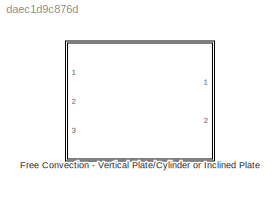
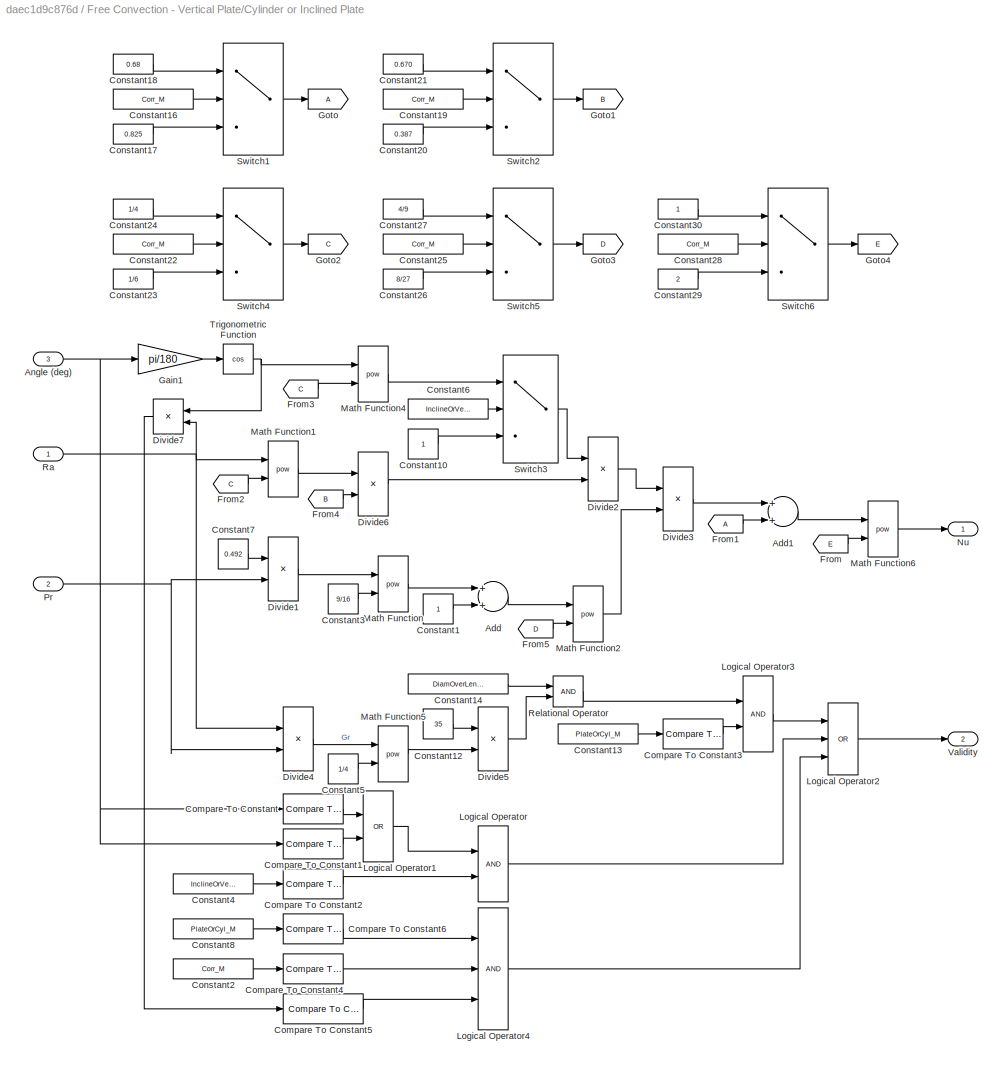
MODEL slx_daec1d9c876d
KIND library
CONFIG AbsTol = auto
CONFIG FixedStep = auto
CONFIG MaxStep = auto
CONFIG MinStep = auto
CONFIG RelTol = 1e-3
CONFIG SampleTimeConstraint = Unconstrained
CONFIG Solver = ode45
CONFIG SolverMode = Auto
CONFIG SolverName = ode45
CONFIG StartTime = 0.0
CONFIG StopTime = 10.0
BLOCK [SubSystem] Free Convection - Vertical Plate//Cylinder or Inclined Plate
  Ports = [3, 2]
  RequestExecContextInheritance = off
BLOCK [Sum] Free Convection - Vertical Plate//Cylinder or Inclined Plate/Add
  InputSameDT = off
  OutDataTypeStr = Inherit: Inherit via internal rule
  Ports = [2, 1]
  SaturateOnIntegerOverflow = off
BLOCK [Sum] Free Convection - Vertical Plate//Cylinder or Inclined Plate/Add1
  InputSameDT = off
  OutDataTypeStr = Inherit: Inherit via internal rule
  Ports = [2, 1]
  SaturateOnIntegerOverflow = off
BLOCK [Inport] Free Convection - Vertical Plate//Cylinder or Inclined Plate/Angle (deg)
  IconDisplay = Port number
  Port = 3
BLOCK [Reference] Free Convection - Vertical Plate//Cylinder or Inclined Plate/Compare To Constant  REF=simulink/Logic and Bit
Operations/Compare
To Constant
  OutDataTypeStr = boolean
  Ports = [1, 1]
  SourceBlock = simulink/Logic and Bit\nOperations/Compare\nTo Constant
  SourceType = Compare To Constant
  ZeroCross = on
  const = 0
  relop = <
BLOCK [Reference] Free Convection - Vertical Plate//Cylinder or Inclined Plate/Compare To Constant1  REF=simulink/Logic and Bit
Operations/Compare
To Constant
  OutDataTypeStr = boolean
  Ports = [1, 1]
  SourceBlock = simulink/Logic and Bit\nOperations/Compare\nTo Constant
  SourceType = Compare To Constant
  ZeroCross = on
  const = 60
  relop = >
BLOCK [Reference] Free Convection - Vertical Plate//Cylinder or Inclined Plate/Compare To Constant2  REF=simulink/Logic and Bit
Operations/Compare
To Constant
  OutDataTypeStr = boolean
  Ports = [1, 1]
  SourceBlock = simulink/Logic and Bit\nOperations/Compare\nTo Constant
  SourceType = Compare To Constant
  ZeroCross = on
  const = 2
  relop = ==
BLOCK [Reference] Free Convection - Vertical Plate//Cylinder or Inclined Plate/Compare To Constant3  REF=simulink/Logic and Bit
Operations/Compare
To Constant
  OutDataTypeStr = boolean
  Ports = [1, 1]
  SourceBlock = simulink/Logic and Bit\nOperations/Compare\nTo Constant
  SourceType = Compare To Constant
  ZeroCross = on
  const = 2
  relop = ==
BLOCK [Reference] Free Convection - Vertical Plate//Cylinder or Inclined Plate/Compare To Constant4  REF=simulink/Logic and Bit
Operations/Compare
To Constant
  OutDataTypeStr = boolean
  Ports = [1, 1]
  SourceBlock = simulink/Logic and Bit\nOperations/Compare\nTo Constant
  SourceType = Compare To Constant
  ZeroCross = on
  const = 2
  relop = ==
BLOCK [Reference] Free Convection - Vertical Plate//Cylinder or Inclined Plate/Compare To Constant5  REF=simulink/Logic and Bit
Operations/Compare
To Constant
  OutDataTypeStr = boolean
  Ports = [1, 1]
  SourceBlock = simulink/Logic and Bit\nOperations/Compare\nTo Constant
  SourceType = Compare To Constant
  ZeroCross = on
  const = 10^9
  relop = >
BLOCK [Reference] Free Convection - Vertical Plate//Cylinder or Inclined Plate/Compare To Constant6  REF=simulink/Logic and Bit
Operations/Compare
To Constant
  OutDataTypeStr = boolean
  Ports = [1, 1]
  SourceBlock = simulink/Logic and Bit\nOperations/Compare\nTo Constant
  SourceType = Compare To Constant
  ZeroCross = on
  const = 1
  relop = ==
BLOCK [Constant] Free Convection - Vertical Plate//Cylinder or Inclined Plate/Constant1
BLOCK [Constant] Free Convection - Vertical Plate//Cylinder or Inclined Plate/Constant10
BLOCK [Constant] Free Convection - Vertical Plate//Cylinder or Inclined Plate/Constant12
  Value = 35
BLOCK [Constant] Free Convection - Vertical Plate//Cylinder or Inclined Plate/Constant13
  Value = PlateOrCyl_M
BLOCK [Constant] Free Convection - Vertical Plate//Cylinder or Inclined Plate/Constant14
  Value = DiamOverLen_M
BLOCK [Constant] Free Convection - Vertical Plate//Cylinder or Inclined Plate/Constant16
  Value = Corr_M
BLOCK [Constant] Free Convection - Vertical Plate//Cylinder or Inclined Plate/Constant17
  Value = 0.825
BLOCK [Constant] Free Convection - Vertical Plate//Cylinder or Inclined Plate/Constant18
  Value = 0.68
BLOCK [Constant] Free Convection - Vertical Plate//Cylinder or Inclined Plate/Constant19
  Value = Corr_M
BLOCK [Constant] Free Convection - Vertical Plate//Cylinder or Inclined Plate/Constant2
  Value = Corr_M
BLOCK [Constant] Free Convection - Vertical Plate//Cylinder or Inclined Plate/Constant20
  Value = 0.387
BLOCK [Constant] Free Convection - Vertical Plate//Cylinder or Inclined Plate/Constant21
  Value = 0.670
BLOCK [Constant] Free Convection - Vertical Plate//Cylinder or Inclined Plate/Constant22
  Value = Corr_M
BLOCK [Constant] Free Convection - Vertical Plate//Cylinder or Inclined Plate/Constant23
  Value = 1/6
BLOCK [Constant] Free Convection - Vertical Plate//Cylinder or Inclined Plate/Constant24
  Value = 1/4
BLOCK [Constant] Free Convection - Vertical Plate//Cylinder or Inclined Plate/Constant25
  Value = Corr_M
BLOCK [Constant] Free Convection - Vertical Plate//Cylinder or Inclined Plate/Constant26
  Value = 8/27
BLOCK [Constant] Free Convection - Vertical Plate//Cylinder or Inclined Plate/Constant27
  Value = 4/9
BLOCK [Constant] Free Convection - Vertical Plate//Cylinder or Inclined Plate/Constant28
  Value = Corr_M
BLOCK [Constant] Free Convection - Vertical Plate//Cylinder or Inclined Plate/Constant29
  Value = 2
BLOCK [Constant] Free Convection - Vertical Plate//Cylinder or Inclined Plate/Constant3
  Value = 9/16
BLOCK [Constant] Free Convection - Vertical Plate//Cylinder or Inclined Plate/Constant30
BLOCK [Constant] Free Convection - Vertical Plate//Cylinder or Inclined Plate/Constant4
  Value = InclineOrVert_M
BLOCK [Constant] Free Convection - Vertical Plate//Cylinder or Inclined Plate/Constant5
  Value = 1/4
BLOCK [Constant] Free Convection - Vertical Plate//Cylinder or Inclined Plate/Constant6
  Value = InclineOrVert_M
BLOCK [Constant] Free Convection - Vertical Plate//Cylinder or Inclined Plate/Constant7
  Value = 0.492
BLOCK [Constant] Free Convection - Vertical Plate//Cylinder or Inclined Plate/Constant8
  Value = PlateOrCyl_M
BLOCK [Product] Free Convection - Vertical Plate//Cylinder or Inclined Plate/Divide1
  InputSameDT = off
  Inputs = */
  OutDataTypeStr = Inherit: Inherit via internal rule
  Ports = [2, 1]
  RndMeth = Floor
  SaturateOnIntegerOverflow = off
BLOCK [Product] Free Convection - Vertical Plate//Cylinder or Inclined Plate/Divide2
  InputSameDT = off
  Inputs = **
  OutDataTypeStr = Inherit: Inherit via internal rule
  Ports = [2, 1]
  RndMeth = Floor
  SaturateOnIntegerOverflow = off
BLOCK [Product] Free Convection - Vertical Plate//Cylinder or Inclined Plate/Divide3
  InputSameDT = off
  Inputs = **
  OutDataTypeStr = Inherit: Inherit via internal rule
  Ports = [2, 1]
  RndMeth = Floor
  SaturateOnIntegerOverflow = off
BLOCK [Product] Free Convection - Vertical Plate//Cylinder or Inclined Plate/Divide4
  InputSameDT = off
  Inputs = */
  OutDataTypeStr = Inherit: Inherit via internal rule
  Ports = [2, 1]
  RndMeth = Floor
  SaturateOnIntegerOverflow = off
BLOCK [Product] Free Convection - Vertical Plate//Cylinder or Inclined Plate/Divide5
  InputSameDT = off
  Inputs = */
  OutDataTypeStr = Inherit: Inherit via internal rule
  Ports = [2, 1]
  RndMeth = Floor
  SaturateOnIntegerOverflow = off
BLOCK [Product] Free Convection - Vertical Plate//Cylinder or Inclined Plate/Divide6
  InputSameDT = off
  Inputs = **
  OutDataTypeStr = Inherit: Inherit via internal rule
  Ports = [2, 1]
  RndMeth = Floor
  SaturateOnIntegerOverflow = off
BLOCK [Product] Free Convection - Vertical Plate//Cylinder or Inclined Plate/Divide7
  InputSameDT = off
  Inputs = **
  OutDataTypeStr = Inherit: Inherit via internal rule
  Ports = [2, 1]
  RndMeth = Floor
  SaturateOnIntegerOverflow = off
BLOCK [From] Free Convection - Vertical Plate//Cylinder or Inclined Plate/From
  GotoTag = E
BLOCK [From] Free Convection - Vertical Plate//Cylinder or Inclined Plate/From1
BLOCK [From] Free Convection - Vertical Plate//Cylinder or Inclined Plate/From2
  GotoTag = C
BLOCK [From] Free Convection - Vertical Plate//Cylinder or Inclined Plate/From3
  GotoTag = C
BLOCK [From] Free Convection - Vertical Plate//Cylinder or Inclined Plate/From4
  GotoTag = B
BLOCK [From] Free Convection - Vertical Plate//Cylinder or Inclined Plate/From5
  GotoTag = D
BLOCK [Gain] Free Convection - Vertical Plate//Cylinder or Inclined Plate/Gain1
  Gain = pi/180
  OutDataTypeStr = Inherit: Inherit via internal rule
  ParamDataTypeStr = Inherit: Inherit via internal rule
  SaturateOnIntegerOverflow = off
BLOCK [Goto] Free Convection - Vertical Plate//Cylinder or Inclined Plate/Goto
BLOCK [Goto] Free Convection - Vertical Plate//Cylinder or Inclined Plate/Goto1
  GotoTag = B
BLOCK [Goto] Free Convection - Vertical Plate//Cylinder or Inclined Plate/Goto2
  GotoTag = C
BLOCK [Goto] Free Convection - Vertical Plate//Cylinder or Inclined Plate/Goto3
  GotoTag = D
BLOCK [Goto] Free Convection - Vertical Plate//Cylinder or Inclined Plate/Goto4
  GotoTag = E
BLOCK [Logic] Free Convection - Vertical Plate//Cylinder or Inclined Plate/Logical Operator
  AllPortsSameDT = off
  OutDataTypeStr = boolean
  Ports = [2, 1]
BLOCK [Logic] Free Convection - Vertical Plate//Cylinder or Inclined Plate/Logical Operator1
  AllPortsSameDT = off
  Operator = OR
  OutDataTypeStr = boolean
  Ports = [2, 1]
BLOCK [Logic] Free Convection - Vertical Plate//Cylinder or Inclined Plate/Logical Operator2
  AllPortsSameDT = off
  Inputs = 3
  Operator = OR
  OutDataTypeStr = boolean
  Ports = [3, 1]
BLOCK [Logic] Free Convection - Vertical Plate//Cylinder or Inclined Plate/Logical Operator3
  AllPortsSameDT = off
  OutDataTypeStr = boolean
  Ports = [2, 1]
BLOCK [Logic] Free Convection - Vertical Plate//Cylinder or Inclined Plate/Logical Operator4
  AllPortsSameDT = off
  Inputs = 3
  OutDataTypeStr = boolean
  Ports = [3, 1]
BLOCK [Math] Free Convection - Vertical Plate//Cylinder or Inclined Plate/Math Function
  Operator = pow
  Ports = [2, 1]
BLOCK [Math] Free Convection - Vertical Plate//Cylinder or Inclined Plate/Math Function1
  Operator = pow
  Ports = [2, 1]
BLOCK [Math] Free Convection - Vertical Plate//Cylinder or Inclined Plate/Math Function2
  Operator = pow
  Ports = [2, 1]
BLOCK [Math] Free Convection - Vertical Plate//Cylinder or Inclined Plate/Math Function4
  Operator = pow
  Ports = [2, 1]
BLOCK [Math] Free Convection - Vertical Plate//Cylinder or Inclined Plate/Math Function5
  Operator = pow
  Ports = [2, 1]
BLOCK [Math] Free Convection - Vertical Plate//Cylinder or Inclined Plate/Math Function6
  Operator = pow
  Ports = [2, 1]
BLOCK [Outport] Free Convection - Vertical Plate//Cylinder or Inclined Plate/Nu
  IconDisplay = Port number
BLOCK [Inport] Free Convection - Vertical Plate//Cylinder or Inclined Plate/Pr
  IconDisplay = Port number
  Port = 2
BLOCK [Inport] Free Convection - Vertical Plate//Cylinder or Inclined Plate/Ra
  IconDisplay = Port number
BLOCK [RelationalOperator] Free Convection - Vertical Plate//Cylinder or Inclined Plate/Relational Operator
  InputSameDT = off
  OutDataTypeStr = boolean
  Ports = [2, 1]
BLOCK [Switch] Free Convection - Vertical Plate//Cylinder or Inclined Plate/Switch1
  Criteria = u2 > Threshold
  InputSameDT = off
  SaturateOnIntegerOverflow = off
  Threshold = 1.5
BLOCK [Switch] Free Convection - Vertical Plate//Cylinder or Inclined Plate/Switch2
  Criteria = u2 > Threshold
  InputSameDT = off
  SaturateOnIntegerOverflow = off
  Threshold = 1.5
BLOCK [Switch] Free Convection - Vertical Plate//Cylinder or Inclined Plate/Switch3
  Criteria = u2 > Threshold
  InputSameDT = off
  SaturateOnIntegerOverflow = off
  Threshold = 1.5
BLOCK [Switch] Free Convection - Vertical Plate//Cylinder or Inclined Plate/Switch4
  Criteria = u2 > Threshold
  InputSameDT = off
  SaturateOnIntegerOverflow = off
  Threshold = 1.5
BLOCK [Switch] Free Convection - Vertical Plate//Cylinder or Inclined Plate/Switch5
  Criteria = u2 > Threshold
  InputSameDT = off
  SaturateOnIntegerOverflow = off
  Threshold = 1.5
BLOCK [Switch] Free Convection - Vertical Plate//Cylinder or Inclined Plate/Switch6
  Criteria = u2 > Threshold
  InputSameDT = off
  SaturateOnIntegerOverflow = off
  Threshold = 1.5
BLOCK [Trigonometry] Free Convection - Vertical Plate//Cylinder or Inclined Plate/Trigonometric Function
  Operator = cos
  Ports = [1, 1]
BLOCK [Outport] Free Convection - Vertical Plate//Cylinder or Inclined Plate/Validity
  IconDisplay = Port number
  Port = 2
LINE Free Convection - Vertical Plate//Cylinder or Inclined Plate/Add1:1 -> Free Convection - Vertical Plate//Cylinder or Inclined Plate/Math Function6:1
LINE Free Convection - Vertical Plate//Cylinder or Inclined Plate/Add:1 -> Free Convection - Vertical Plate//Cylinder or Inclined Plate/Math Function2:1
NET Free Convection - Vertical Plate//Cylinder or Inclined Plate/Angle (deg):1 -> Free Convection - Vertical Plate//Cylinder or Inclined Plate/Compare To Constant1:1, Free Convection - Vertical Plate//Cylinder or Inclined Plate/Compare To Constant:1, Free Convection - Vertical Plate//Cylinder or Inclined Plate/Gain1:1
LINE Free Convection - Vertical Plate//Cylinder or Inclined Plate/Compare To Constant1:1 -> Free Convection - Vertical Plate//Cylinder or Inclined Plate/Logical Operator1:2
LINE Free Convection - Vertical Plate//Cylinder or Inclined Plate/Compare To Constant2:1 -> Free Convection - Vertical Plate//Cylinder or Inclined Plate/Logical Operator:2
LINE Free Convection - Vertical Plate//Cylinder or Inclined Plate/Compare To Constant3:1 -> Free Convection - Vertical Plate//Cylinder or Inclined Plate/Logical Operator3:2
LINE Free Convection - Vertical Plate//Cylinder or Inclined Plate/Compare To Constant4:1 -> Free Convection - Vertical Plate//Cylinder or Inclined Plate/Logical Operator4:2
LINE Free Convection - Vertical Plate//Cylinder or Inclined Plate/Compare To Constant5:1 -> Free Convection - Vertical Plate//Cylinder or Inclined Plate/Logical Operator4:3
LINE Free Convection - Vertical Plate//Cylinder or Inclined Plate/Compare To Constant6:1 -> Free Convection - Vertical Plate//Cylinder or Inclined Plate/Logical Operator4:1
LINE Free Convection - Vertical Plate//Cylinder or Inclined Plate/Compare To Constant:1 -> Free Convection - Vertical Plate//Cylinder or Inclined Plate/Logical Operator1:1
LINE Free Convection - Vertical Plate//Cylinder or Inclined Plate/Constant10:1 -> Free Convection - Vertical Plate//Cylinder or Inclined Plate/Switch3:3
LINE Free Convection - Vertical Plate//Cylinder or Inclined Plate/Constant12:1 -> Free Convection - Vertical Plate//Cylinder or Inclined Plate/Divide5:1
LINE Free Convection - Vertical Plate//Cylinder or Inclined Plate/Constant13:1 -> Free Convection - Vertical Plate//Cylinder or Inclined Plate/Compare To Constant3:1
LINE Free Convection - Vertical Plate//Cylinder or Inclined Plate/Constant14:1 -> Free Convection - Vertical Plate//Cylinder or Inclined Plate/Relational Operator:1
LINE Free Convection - Vertical Plate//Cylinder or Inclined Plate/Constant16:1 -> Free Convection - Vertical Plate//Cylinder or Inclined Plate/Switch1:2
LINE Free Convection - Vertical Plate//Cylinder or Inclined Plate/Constant17:1 -> Free Convection - Vertical Plate//Cylinder or Inclined Plate/Switch1:3
LINE Free Convection - Vertical Plate//Cylinder or Inclined Plate/Constant18:1 -> Free Convection - Vertical Plate//Cylinder or Inclined Plate/Switch1:1
LINE Free Convection - Vertical Plate//Cylinder or Inclined Plate/Constant19:1 -> Free Convection - Vertical Plate//Cylinder or Inclined Plate/Switch2:2
LINE Free Convection - Vertical Plate//Cylinder or Inclined Plate/Constant1:1 -> Free Convection - Vertical Plate//Cylinder or Inclined Plate/Add:2
LINE Free Convection - Vertical Plate//Cylinder or Inclined Plate/Constant20:1 -> Free Convection - Vertical Plate//Cylinder or Inclined Plate/Switch2:3
LINE Free Convection - Vertical Plate//Cylinder or Inclined Plate/Constant21:1 -> Free Convection - Vertical Plate//Cylinder or Inclined Plate/Switch2:1
LINE Free Convection - Vertical Plate//Cylinder or Inclined Plate/Constant22:1 -> Free Convection - Vertical Plate//Cylinder or Inclined Plate/Switch4:2
LINE Free Convection - Vertical Plate//Cylinder or Inclined Plate/Constant23:1 -> Free Convection - Vertical Plate//Cylinder or Inclined Plate/Switch4:3
LINE Free Convection - Vertical Plate//Cylinder or Inclined Plate/Constant24:1 -> Free Convection - Vertical Plate//Cylinder or Inclined Plate/Switch4:1
LINE Free Convection - Vertical Plate//Cylinder or Inclined Plate/Constant25:1 -> Free Convection - Vertical Plate//Cylinder or Inclined Plate/Switch5:2
LINE Free Convection - Vertical Plate//Cylinder or Inclined Plate/Constant26:1 -> Free Convection - Vertical Plate//Cylinder or Inclined Plate/Switch5:3
LINE Free Convection - Vertical Plate//Cylinder or Inclined Plate/Constant27:1 -> Free Convection - Vertical Plate//Cylinder or Inclined Plate/Switch5:1
LINE Free Convection - Vertical Plate//Cylinder or Inclined Plate/Constant28:1 -> Free Convection - Vertical Plate//Cylinder or Inclined Plate/Switch6:2
LINE Free Convection - Vertical Plate//Cylinder or Inclined Plate/Constant29:1 -> Free Convection - Vertical Plate//Cylinder or Inclined Plate/Switch6:3
LINE Free Convection - Vertical Plate//Cylinder or Inclined Plate/Constant2:1 -> Free Convection - Vertical Plate//Cylinder or Inclined Plate/Compare To Constant4:1
LINE Free Convection - Vertical Plate//Cylinder or Inclined Plate/Constant30:1 -> Free Convection - Vertical Plate//Cylinder or Inclined Plate/Switch6:1
LINE Free Convection - Vertical Plate//Cylinder or Inclined Plate/Constant3:1 -> Free Convection - Vertical Plate//Cylinder or Inclined Plate/Math Function:2
LINE Free Convection - Vertical Plate//Cylinder or Inclined Plate/Constant4:1 -> Free Convection - Vertical Plate//Cylinder or Inclined Plate/Compare To Constant2:1
LINE Free Convection - Vertical Plate//Cylinder or Inclined Plate/Constant5:1 -> Free Convection - Vertical Plate//Cylinder or Inclined Plate/Math Function5:2
LINE Free Convection - Vertical Plate//Cylinder or Inclined Plate/Constant6:1 -> Free Convection - Vertical Plate//Cylinder or Inclined Plate/Switch3:2
LINE Free Convection - Vertical Plate//Cylinder or Inclined Plate/Constant7:1 -> Free Convection - Vertical Plate//Cylinder or Inclined Plate/Divide1:1
LINE Free Convection - Vertical Plate//Cylinder or Inclined Plate/Constant8:1 -> Free Convection - Vertical Plate//Cylinder or Inclined Plate/Compare To Constant6:1
LINE Free Convection - Vertical Plate//Cylinder or Inclined Plate/Divide1:1 -> Free Convection - Vertical Plate//Cylinder or Inclined Plate/Math Function:1
LINE Free Convection - Vertical Plate//Cylinder or Inclined Plate/Divide2:1 -> Free Convection - Vertical Plate//Cylinder or Inclined Plate/Divide3:1
LINE Free Convection - Vertical Plate//Cylinder or Inclined Plate/Divide3:1 -> Free Convection - Vertical Plate//Cylinder or Inclined Plate/Add1:1
LINE Free Convection - Vertical Plate//Cylinder or Inclined Plate/Divide4:1 -> Free Convection - Vertical Plate//Cylinder or Inclined Plate/Math Function5:1
LINE Free Convection - Vertical Plate//Cylinder or Inclined Plate/Divide5:1 -> Free Convection - Vertical Plate//Cylinder or Inclined Plate/Relational Operator:2
LINE Free Convection - Vertical Plate//Cylinder or Inclined Plate/Divide6:1 -> Free Convection - Vertical Plate//Cylinder or Inclined Plate/Divide2:2
LINE Free Convection - Vertical Plate//Cylinder or Inclined Plate/Divide7:1 -> Free Convection - Vertical Plate//Cylinder or Inclined Plate/Compare To Constant5:1
LINE Free Convection - Vertical Plate//Cylinder or Inclined Plate/From1:1 -> Free Convection - Vertical Plate//Cylinder or Inclined Plate/Add1:2
LINE Free Convection - Vertical Plate//Cylinder or Inclined Plate/From2:1 -> Free Convection - Vertical Plate//Cylinder or Inclined Plate/Math Function1:2
LINE Free Convection - Vertical Plate//Cylinder or Inclined Plate/From3:1 -> Free Convection - Vertical Plate//Cylinder or Inclined Plate/Math Function4:2
LINE Free Convection - Vertical Plate//Cylinder or Inclined Plate/From4:1 -> Free Convection - Vertical Plate//Cylinder or Inclined Plate/Divide6:2
LINE Free Convection - Vertical Plate//Cylinder or Inclined Plate/From5:1 -> Free Convection - Vertical Plate//Cylinder or Inclined Plate/Math Function2:2
LINE Free Convection - Vertical Plate//Cylinder or Inclined Plate/From:1 -> Free Convection - Vertical Plate//Cylinder or Inclined Plate/Math Function6:2
LINE Free Convection - Vertical Plate//Cylinder or Inclined Plate/Gain1:1 -> Free Convection - Vertical Plate//Cylinder or Inclined Plate/Trigonometric Function:1
LINE Free Convection - Vertical Plate//Cylinder or Inclined Plate/Logical Operator1:1 -> Free Convection - Vertical Plate//Cylinder or Inclined Plate/Logical Operator:1
LINE Free Convection - Vertical Plate//Cylinder or Inclined Plate/Logical Operator2:1 -> Free Convection - Vertical Plate//Cylinder or Inclined Plate/Validity:1
LINE Free Convection - Vertical Plate//Cylinder or Inclined Plate/Logical Operator3:1 -> Free Convection - Vertical Plate//Cylinder or Inclined Plate/Logical Operator2:1
LINE Free Convection - Vertical Plate//Cylinder or Inclined Plate/Logical Operator4:1 -> Free Convection - Vertical Plate//Cylinder or Inclined Plate/Logical Operator2:3
LINE Free Convection - Vertical Plate//Cylinder or Inclined Plate/Logical Operator:1 -> Free Convection - Vertical Plate//Cylinder or Inclined Plate/Logical Operator2:2
LINE Free Convection - Vertical Plate//Cylinder or Inclined Plate/Math Function1:1 -> Free Convection - Vertical Plate//Cylinder or Inclined Plate/Divide6:1
LINE Free Convection - Vertical Plate//Cylinder or Inclined Plate/Math Function2:1 -> Free Convection - Vertical Plate//Cylinder or Inclined Plate/Divide3:2
LINE Free Convection - Vertical Plate//Cylinder or Inclined Plate/Math Function4:1 -> Free Convection - Vertical Plate//Cylinder or Inclined Plate/Switch3:1
LINE Free Convection - Vertical Plate//Cylinder or Inclined Plate/Math Function5:1 -> Free Convection - Vertical Plate//Cylinder or Inclined Plate/Divide5:2
LINE Free Convection - Vertical Plate//Cylinder or Inclined Plate/Math Function6:1 -> Free Convection - Vertical Plate//Cylinder or Inclined Plate/Nu:1
LINE Free Convection - Vertical Plate//Cylinder or Inclined Plate/Math Function:1 -> Free Convection - Vertical Plate//Cylinder or Inclined Plate/Add:1
NET Free Convection - Vertical Plate//Cylinder or Inclined Plate/Pr:1 -> Free Convection - Vertical Plate//Cylinder or Inclined Plate/Divide1:2, Free Convection - Vertical Plate//Cylinder or Inclined Plate/Divide4:2
NET Free Convection - Vertical Plate//Cylinder or Inclined Plate/Ra:1 -> Free Convection - Vertical Plate//Cylinder or Inclined Plate/Divide4:1, Free Convection - Vertical Plate//Cylinder or Inclined Plate/Divide7:2, Free Convection - Vertical Plate//Cylinder or Inclined Plate/Math Function1:1
LINE Free Convection - Vertical Plate//Cylinder or Inclined Plate/Relational Operator:1 -> Free Convection - Vertical Plate//Cylinder or Inclined Plate/Logical Operator3:1
LINE Free Convection - Vertical Plate//Cylinder or Inclined Plate/Switch1:1 -> Free Convection - Vertical Plate//Cylinder or Inclined Plate/Goto:1
LINE Free Convection - Vertical Plate//Cylinder or Inclined Plate/Switch2:1 -> Free Convection - Vertical Plate//Cylinder or Inclined Plate/Goto1:1
LINE Free Convection - Vertical Plate//Cylinder or Inclined Plate/Switch3:1 -> Free Convection - Vertical Plate//Cylinder or Inclined Plate/Divide2:1
LINE Free Convection - Vertical Plate//Cylinder or Inclined Plate/Switch4:1 -> Free Convection - Vertical Plate//Cylinder or Inclined Plate/Goto2:1
LINE Free Convection - Vertical Plate//Cylinder or Inclined Plate/Switch5:1 -> Free Convection - Vertical Plate//Cylinder or Inclined Plate/Goto3:1
LINE Free Convection - Vertical Plate//Cylinder or Inclined Plate/Switch6:1 -> Free Convection - Vertical Plate//Cylinder or Inclined Plate/Goto4:1
NET Free Convection - Vertical Plate//Cylinder or Inclined Plate/Trigonometric Function:1 -> Free Convection - Vertical Plate//Cylinder or Inclined Plate/Divide7:1, Free Convection - Vertical Plate//Cylinder or Inclined Plate/Math Function4:1
note: NET lines group one-source signal fan-out (src -> all destinations, sorted); 1:1 wires keep LINE
